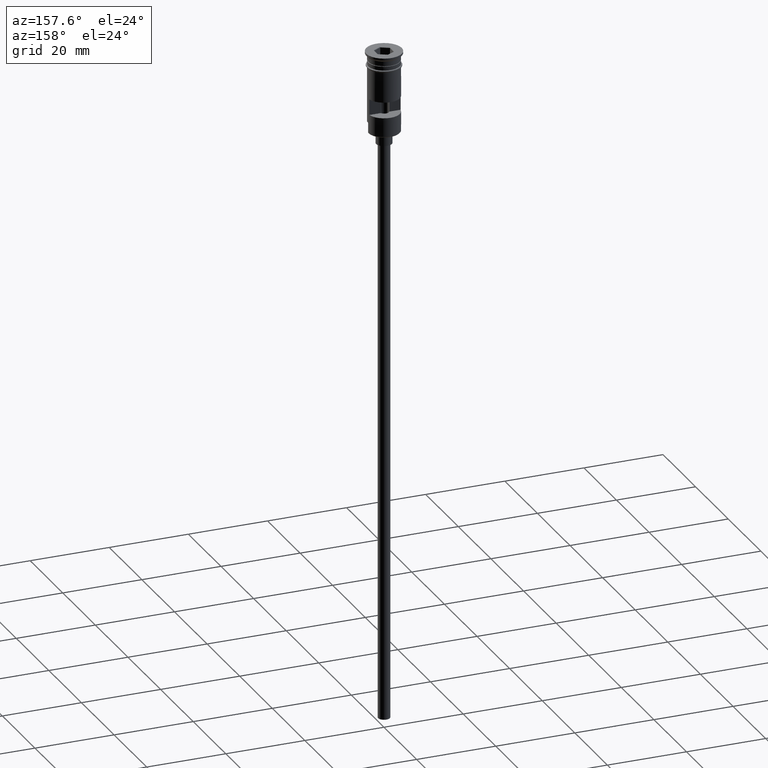
[diagram: clean part render]
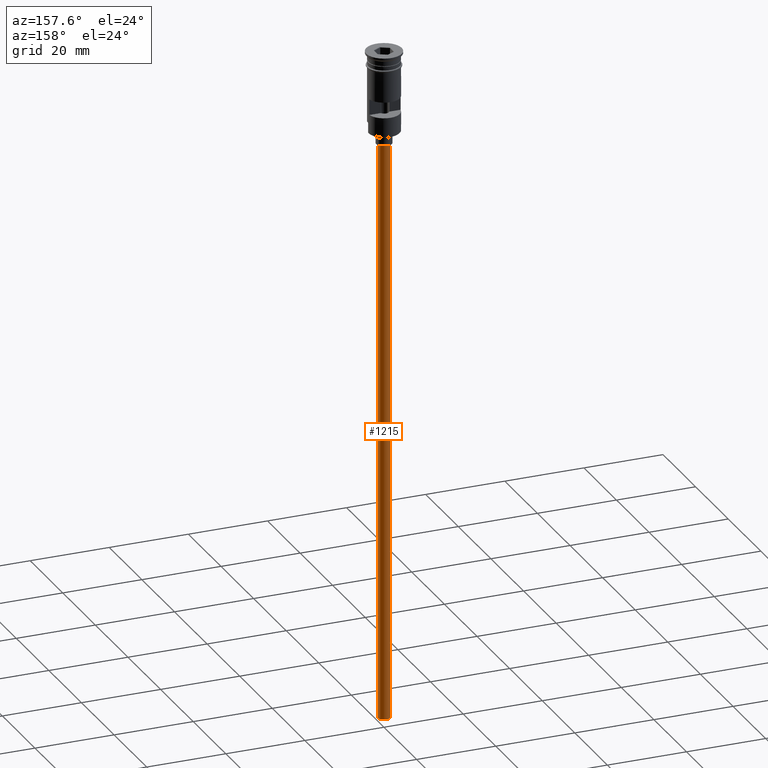
[diagram: same view with one face highlighted and labeled with its STEP entity id]
A machine part, auxiliary view. The second image highlights one B-rep face of the part: STEP entity #1215.
In plain terms, the highlighted cylindrical surface (edge-blend (fillet) strip) has radius 1.5 mm, axis along (-0, -0, 1).
Its self-contained STEP definition (entity closure, byte-faithful):
#6 = ORIENTED_EDGE ( 'NONE', *, *, #625, .T. ) ;
#65 = CARTESIAN_POINT ( 'NONE',  ( 0.000000000000000000, 0.000000000000000000, -23.49999999999999645 ) ) ;
#77 = CIRCLE ( 'NONE', #952, 1.500000000000000222 ) ;
#143 = FACE_OUTER_BOUND ( 'NONE', #1398, .T. ) ;
#203 = CARTESIAN_POINT ( 'NONE',  ( 1.500000000000000222, 0.000000000000000000, -170.4999999999999716 ) ) ;
#236 = ORIENTED_EDGE ( 'NONE', *, *, #856, .T. ) ;
#294 = DIRECTION ( 'NONE',  ( -0.000000000000000000, -0.000000000000000000, 1.000000000000000000 ) ) ;
#351 = CARTESIAN_POINT ( 'NONE',  ( -1.500000000000000222, 1.836970198721030181E-16, -170.4999999999999716 ) ) ;
#453 = CARTESIAN_POINT ( 'NONE',  ( -1.500000000000000222, 1.836970198721030181E-16, -23.49999999999999645 ) ) ;
#501 = ORIENTED_EDGE ( 'NONE', *, *, #1386, .F. ) ;
#599 = ORIENTED_EDGE ( 'NONE', *, *, #913, .F. ) ;
#613 = VERTEX_POINT ( 'NONE', #453 ) ;
#625 = EDGE_CURVE ( 'NONE', #992, #613, #1082, .T. ) ;
#656 = VECTOR ( 'NONE', #812, 1000.000000000000000 ) ;
#675 = LINE ( 'NONE', #203, #1277 ) ;
#739 = CYLINDRICAL_SURFACE ( 'NONE', #748, 1.500000000000000222 ) ;
#748 = AXIS2_PLACEMENT_3D ( 'NONE', #1031, #758, #1142 ) ;
#758 = DIRECTION ( 'NONE',  ( -0.000000000000000000, -0.000000000000000000, 1.000000000000000000 ) ) ;
#812 = DIRECTION ( 'NONE',  ( -0.000000000000000000, -0.000000000000000000, 1.000000000000000000 ) ) ;
#856 = EDGE_CURVE ( 'NONE', #613, #1367, #1011, .T. ) ;
#913 = EDGE_CURVE ( 'NONE', #992, #1212, #77, .T. ) ;
#935 = CARTESIAN_POINT ( 'NONE',  ( 1.500000000000000222, 0.000000000000000000, -23.49999999999999645 ) ) ;
#945 = DIRECTION ( 'NONE',  ( 0.000000000000000000, 0.000000000000000000, -1.000000000000000000 ) ) ;
#952 = AXIS2_PLACEMENT_3D ( 'NONE', #1516, #945, #1183 ) ;
#992 = VERTEX_POINT ( 'NONE', #351 ) ;
#1011 = CIRCLE ( 'NONE', #1146, 1.500000000000000222 ) ;
#1031 = CARTESIAN_POINT ( 'NONE',  ( 0.000000000000000000, 0.000000000000000000, -170.4999999999999716 ) ) ;
#1076 = DIRECTION ( 'NONE',  ( -1.000000000000000000, 0.000000000000000000, 0.000000000000000000 ) ) ;
#1077 = CARTESIAN_POINT ( 'NONE',  ( -1.500000000000000222, 1.836970198721030181E-16, -170.4999999999999716 ) ) ;
#1082 = LINE ( 'NONE', #1077, #656 ) ;
#1142 = DIRECTION ( 'NONE',  ( 1.000000000000000000, 0.000000000000000000, 0.000000000000000000 ) ) ;
#1146 = AXIS2_PLACEMENT_3D ( 'NONE', #65, #1276, #1076 ) ;
#1154 = CARTESIAN_POINT ( 'NONE',  ( 1.500000000000000222, 0.000000000000000000, -170.4999999999999716 ) ) ;
#1183 = DIRECTION ( 'NONE',  ( -1.000000000000000000, 0.000000000000000000, 0.000000000000000000 ) ) ;
#1212 = VERTEX_POINT ( 'NONE', #1154 ) ;
#1215 = ADVANCED_FACE ( 'NONE', ( #143 ), #739, .T. ) ;
#1276 = DIRECTION ( 'NONE',  ( 0.000000000000000000, 0.000000000000000000, -1.000000000000000000 ) ) ;
#1277 = VECTOR ( 'NONE', #294, 1000.000000000000000 ) ;
#1367 = VERTEX_POINT ( 'NONE', #935 ) ;
#1386 = EDGE_CURVE ( 'NONE', #1212, #1367, #675, .T. ) ;
#1398 = EDGE_LOOP ( 'NONE', ( #599, #6, #236, #501 ) ) ;
#1516 = CARTESIAN_POINT ( 'NONE',  ( 0.000000000000000000, 0.000000000000000000, -170.4999999999999716 ) ) ;